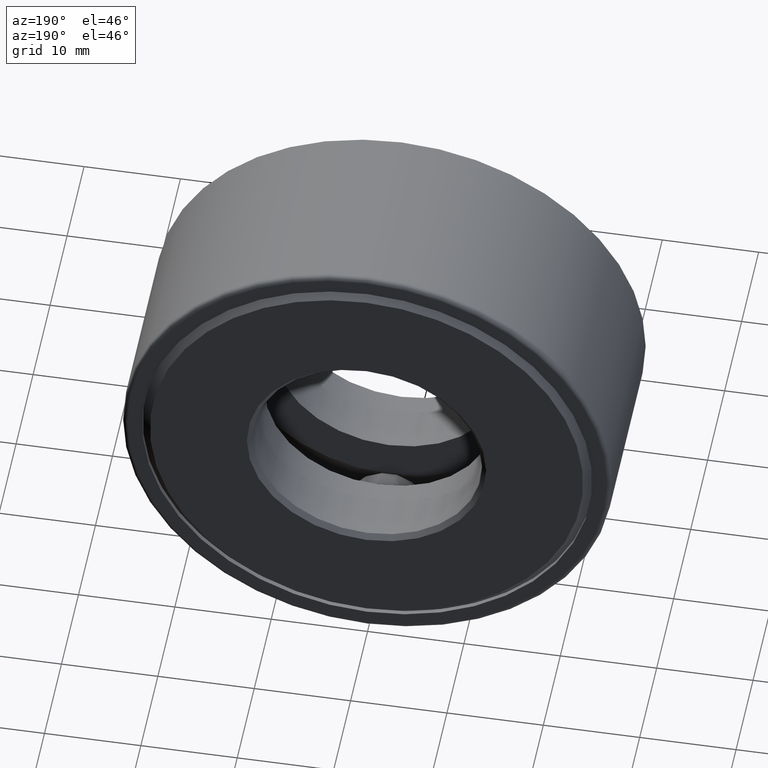
[diagram: clean part render]
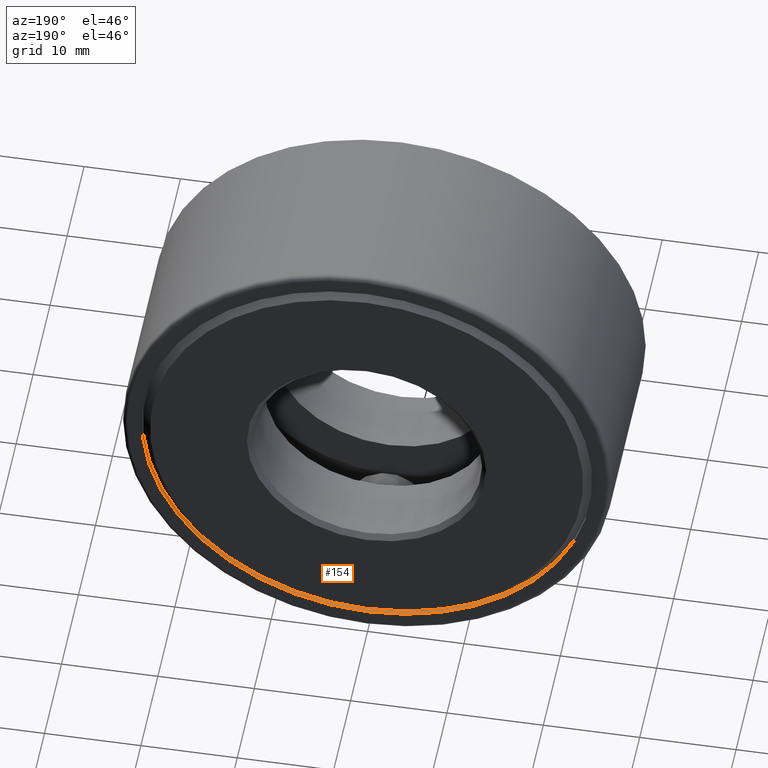
[diagram: same view with one face highlighted and labeled with its STEP entity id]
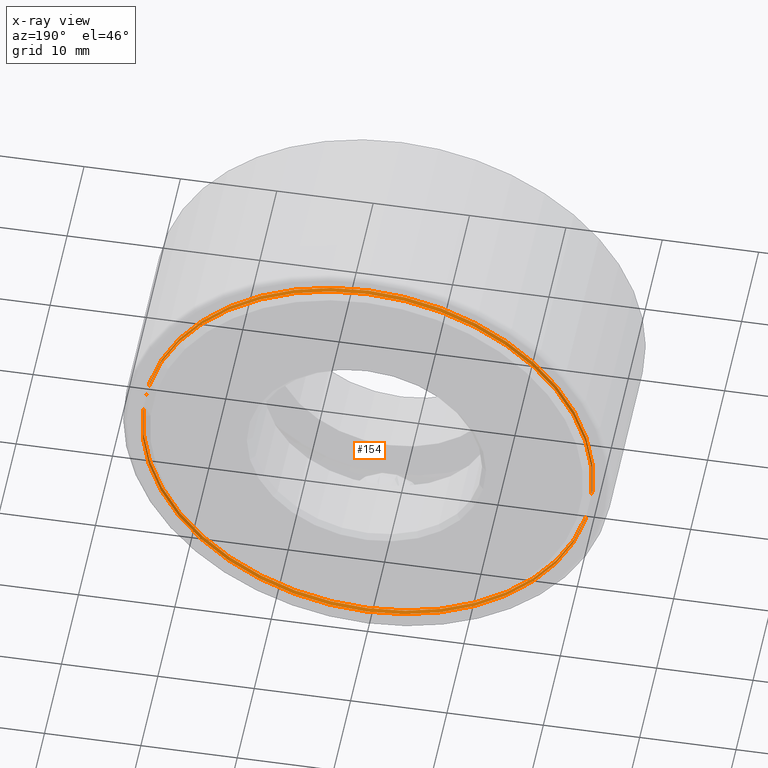
[diagram: x-ray of the same camera — body ghosted, the highlighted face saturated]
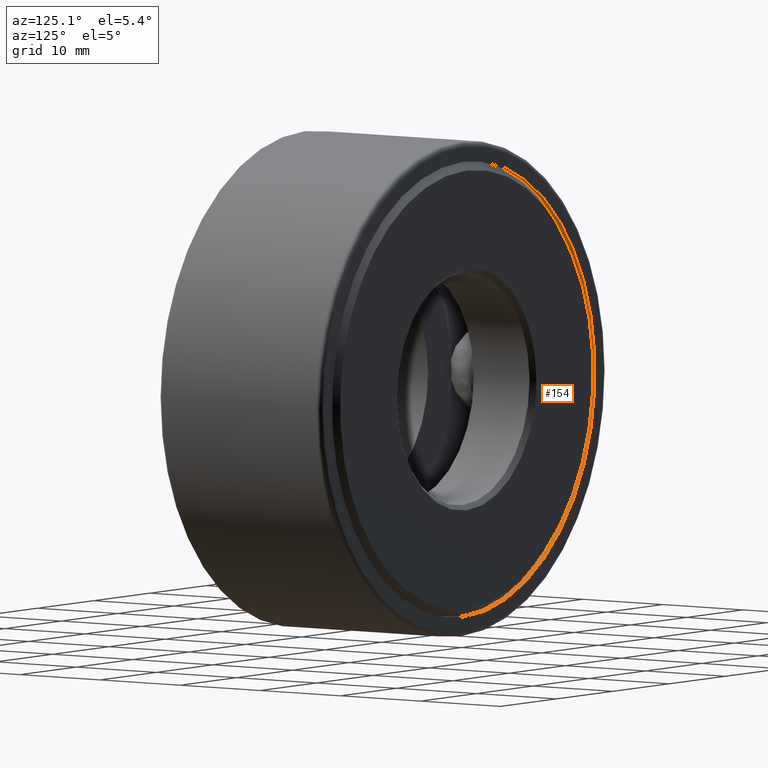
[diagram: same view with one face highlighted and labeled with its STEP entity id]
A machine part, auxiliary view. The second image highlights one B-rep face of the part: STEP entity #154.
The next image is the same camera in x-ray: the body ghosted, the highlighted face saturated — about 0% of this face is hidden behind the body in this view.
A second angle (auxiliary view) of the same face is appended — the face is thin or edge-on in the first view.
In plain terms, the highlighted cylindrical surface (bore or boss wall) has radius 23.368 mm, axis along (-0, 1, -0).
Its self-contained STEP definition (entity closure, byte-faithful):
#44 = EDGE_LOOP ( 'NONE', ( #522 ) ) ;
#56 = EDGE_CURVE ( 'NONE', #361, #361, #351, .T. ) ;
#72 = CARTESIAN_POINT ( 'NONE',  ( 0.0000000000000000000, 0.7974999999999998800, 0.9200000000000000400 ) ) ;
#134 = AXIS2_PLACEMENT_3D ( 'NONE', #543, #405, #356 ) ;
#154 = ADVANCED_FACE ( 'NONE', ( #334, #480 ), #354, .F. ) ;
#184 = DIRECTION ( 'NONE',  ( -0.0000000000000000000, 1.000000000000000000, -0.0000000000000000000 ) ) ;
#202 = CARTESIAN_POINT ( 'NONE',  ( 0.0000000000000000000, 0.7974999999999998800, 0.0000000000000000000 ) ) ;
#272 = AXIS2_PLACEMENT_3D ( 'NONE', #416, #184, #462 ) ;
#287 = EDGE_CURVE ( 'NONE', #294, #294, #602, .T. ) ;
#294 = VERTEX_POINT ( 'NONE', #319 ) ;
#315 = ORIENTED_EDGE ( 'NONE', *, *, #56, .T. ) ;
#319 = CARTESIAN_POINT ( 'NONE',  ( 0.0000000000000000000, 0.7774999999999998600, 0.9200000000000000400 ) ) ;
#334 = FACE_OUTER_BOUND ( 'NONE', #44, .T. ) ;
#351 = CIRCLE ( 'NONE', #586, 0.9200000000000000400 ) ;
#354 = CYLINDRICAL_SURFACE ( 'NONE', #134, 0.9200000000000000400 ) ;
#356 = DIRECTION ( 'NONE',  ( 0.0000000000000000000, 0.0000000000000000000, 1.000000000000000000 ) ) ;
#361 = VERTEX_POINT ( 'NONE', #72 ) ;
#397 = DIRECTION ( 'NONE',  ( -0.0000000000000000000, 1.000000000000000000, -0.0000000000000000000 ) ) ;
#405 = DIRECTION ( 'NONE',  ( -0.0000000000000000000, 1.000000000000000000, -0.0000000000000000000 ) ) ;
#416 = CARTESIAN_POINT ( 'NONE',  ( 0.0000000000000000000, 0.7774999999999998600, 0.0000000000000000000 ) ) ;
#462 = DIRECTION ( 'NONE',  ( 0.0000000000000000000, 0.0000000000000000000, 1.000000000000000000 ) ) ;
#471 = DIRECTION ( 'NONE',  ( 0.0000000000000000000, 0.0000000000000000000, 1.000000000000000000 ) ) ;
#480 = FACE_OUTER_BOUND ( 'NONE', #576, .T. ) ;
#522 = ORIENTED_EDGE ( 'NONE', *, *, #287, .F. ) ;
#543 = CARTESIAN_POINT ( 'NONE',  ( 0.0000000000000000000, 0.0000000000000000000, 0.0000000000000000000 ) ) ;
#576 = EDGE_LOOP ( 'NONE', ( #315 ) ) ;
#586 = AXIS2_PLACEMENT_3D ( 'NONE', #202, #397, #471 ) ;
#602 = CIRCLE ( 'NONE', #272, 0.9200000000000000400 ) ;